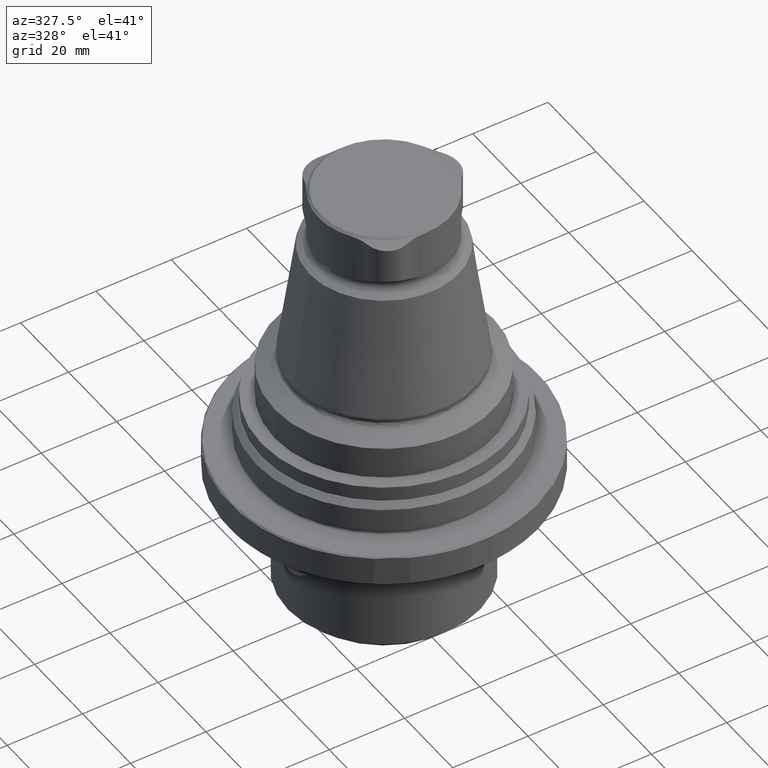
[diagram: clean part render]
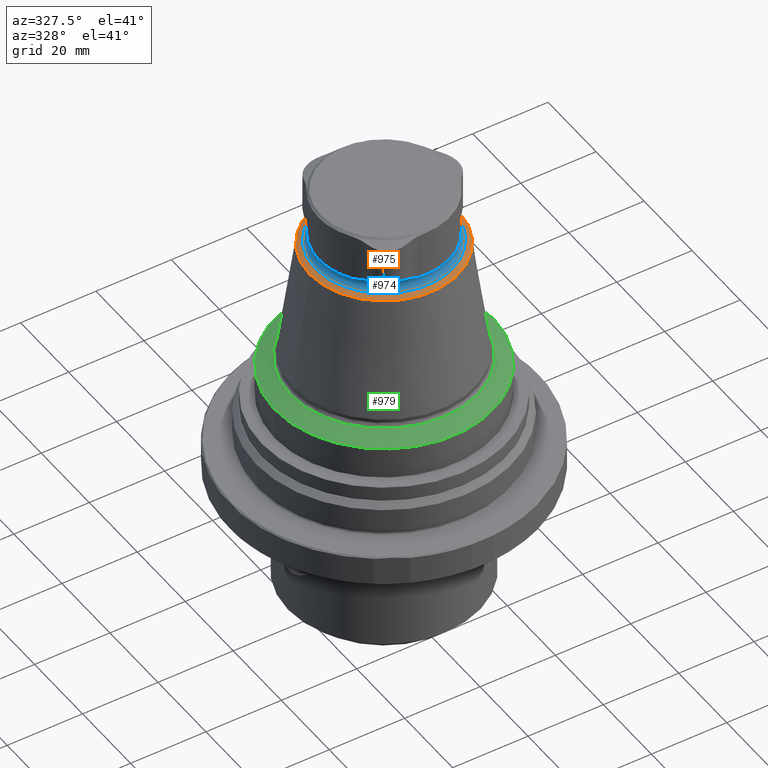
[diagram: same view with three faces highlighted in distinct colors, each labeled with its STEP entity id]
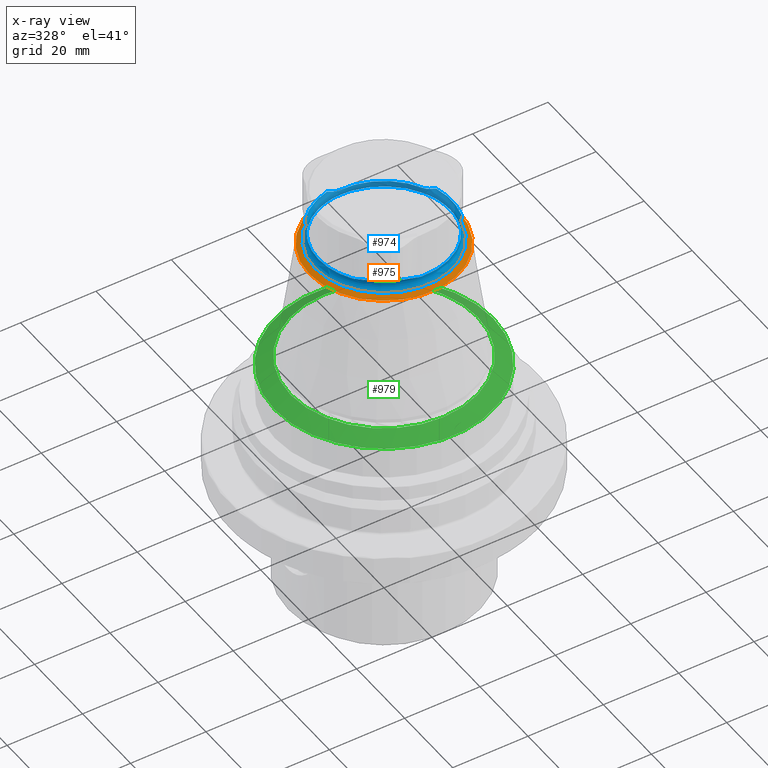
[diagram: x-ray of the same camera — body ghosted, the three highlighted faces saturated]
A machine part, auxiliary view with three faces highlighted in distinct colors.
The next image is the same camera in x-ray (body ghosted, the three faces saturated) — at least one of them is partly hidden behind the body in this view.
Their STEP definitions:

[orange] entity #975 — the highlighted conical surface has half-angle 60 deg.
#46=CONICAL_SURFACE('',#1099,19.820622068747,1.0471975511966);
#100=CIRCLE('',#1098,18.28);
#101=CIRCLE('',#1100,19.820622068747);
#398=ORIENTED_EDGE('',*,*,#553,.T.);
#399=ORIENTED_EDGE('',*,*,#554,.F.);
#553=EDGE_CURVE('',#653,#653,#100,.T.);
#554=EDGE_CURVE('',#654,#654,#101,.T.);
#653=VERTEX_POINT('',#1843);
#654=VERTEX_POINT('',#1846);
#774=EDGE_LOOP('',(#398));
#775=EDGE_LOOP('',(#399));
#869=FACE_BOUND('',#774,.T.);
#870=FACE_BOUND('',#775,.T.);
#975=ADVANCED_FACE('',(#869,#870),#46,.T.);
#1098=AXIS2_PLACEMENT_3D('',#1842,#1346,#1347);
#1099=AXIS2_PLACEMENT_3D('',#1844,#1348,#1349);
#1100=AXIS2_PLACEMENT_3D('',#1845,#1350,#1351);
#1346=DIRECTION('',(1.22461692971323E-16,-7.49836836562635E-33,-1.));
#1347=DIRECTION('',(-1.,6.12303176911189E-17,-1.22461692971323E-16));
#1348=DIRECTION('',(1.22461692971323E-16,-7.49836836562635E-33,-1.));
#1349=DIRECTION('',(-1.,6.12303176911189E-17,-1.22461692971323E-16));
#1350=DIRECTION('',(1.22461692971323E-16,-7.49836836562635E-33,-1.));
#1351=DIRECTION('',(-1.,6.12303176911189E-17,-1.22461692971323E-16));
#1842=CARTESIAN_POINT('',(1.86742218163645E-15,-1.14342853445042E-31,57.7519331303847));
#1843=CARTESIAN_POINT('',(-18.28,1.11929020739365E-15,57.7519331303847));
#1844=CARTESIAN_POINT('',(1.97634923270405E-15,-1.21012491387068E-31,56.8624545642742));
#1845=CARTESIAN_POINT('',(1.97634923270405E-15,-1.21012491387068E-31,56.8624545642742));
#1846=CARTESIAN_POINT('',(-19.820622068747,1.21362298610498E-15,56.8624545642742));

[blue] entity #974 — the highlighted toroidal blend (fillet) surface has major radius 19.28 mm and minor (blend) radius 2 mm.
#54=TOROIDAL_SURFACE('',#1097,19.28,2.);
#94=CIRCLE('',#1081,17.9944247806269);
#95=CIRCLE('',#1084,17.38);
#96=CIRCLE('',#1087,17.9944247806269);
#97=CIRCLE('',#1090,17.38);
#98=CIRCLE('',#1093,17.9944247806269);
#99=CIRCLE('',#1096,17.38);
#100=CIRCLE('',#1098,18.28);
#385=ORIENTED_EDGE('',*,*,#553,.F.);
#386=ORIENTED_EDGE('',*,*,#552,.T.);
#387=ORIENTED_EDGE('',*,*,#551,.T.);
#388=ORIENTED_EDGE('',*,*,#548,.T.);
#389=ORIENTED_EDGE('',*,*,#547,.T.);
#390=ORIENTED_EDGE('',*,*,#545,.T.);
#391=ORIENTED_EDGE('',*,*,#543,.T.);
#392=ORIENTED_EDGE('',*,*,#540,.T.);
#393=ORIENTED_EDGE('',*,*,#539,.T.);
#394=ORIENTED_EDGE('',*,*,#537,.T.);
#395=ORIENTED_EDGE('',*,*,#535,.T.);
#396=ORIENTED_EDGE('',*,*,#532,.T.);
#397=ORIENTED_EDGE('',*,*,#531,.T.);
#531=EDGE_CURVE('',#641,#642,#695,.T.);
#532=EDGE_CURVE('',#643,#641,#94,.T.);
#535=EDGE_CURVE('',#644,#643,#697,.T.);
#537=EDGE_CURVE('',#645,#644,#95,.T.);
#539=EDGE_CURVE('',#646,#645,#699,.T.);
#540=EDGE_CURVE('',#647,#646,#96,.T.);
#543=EDGE_CURVE('',#648,#647,#701,.T.);
#545=EDGE_CURVE('',#649,#648,#97,.T.);
#547=EDGE_CURVE('',#650,#649,#703,.T.);
#548=EDGE_CURVE('',#651,#650,#98,.T.);
#551=EDGE_CURVE('',#652,#651,#705,.T.);
#552=EDGE_CURVE('',#642,#652,#99,.T.);
#553=EDGE_CURVE('',#653,#653,#100,.T.);
#641=VERTEX_POINT('',#1756);
#642=VERTEX_POINT('',#1758);
#643=VERTEX_POINT('',#1766);
#644=VERTEX_POINT('',#1773);
#645=VERTEX_POINT('',#1781);
#646=VERTEX_POINT('',#1788);
#647=VERTEX_POINT('',#1796);
#648=VERTEX_POINT('',#1803);
#649=VERTEX_POINT('',#1811);
#650=VERTEX_POINT('',#1818);
#651=VERTEX_POINT('',#1826);
#652=VERTEX_POINT('',#1833);
#653=VERTEX_POINT('',#1843);
#695=B_SPLINE_CURVE_WITH_KNOTS('',3,(#1759,#1760,#1761,#1762,#1763),
 .UNSPECIFIED.,.F.,.F.,(4,1,4),(6.35686144103671E-7,0.0015978311918001,
0.00319502669745609),.UNSPECIFIED.);
#697=B_SPLINE_CURVE_WITH_KNOTS('',3,(#1774,#1775,#1776,#1777,#1778),
 .UNSPECIFIED.,.F.,.F.,(4,1,4),(1.97137655947821E-7,0.00159333802635267,
0.00318647891504939),.UNSPECIFIED.);
#699=B_SPLINE_CURVE_WITH_KNOTS('',3,(#1789,#1790,#1791,#1792,#1793),
 .UNSPECIFIED.,.F.,.F.,(4,1,4),(6.35686110278571E-7,0.00159783085864817,
0.00319502603118605),.UNSPECIFIED.);
#701=B_SPLINE_CURVE_WITH_KNOTS('',3,(#1804,#1805,#1806,#1807,#1808),
 .UNSPECIFIED.,.F.,.F.,(4,1,4),(2.20521440774518E-7,0.00159336113449156,
0.00318650174754235),.UNSPECIFIED.);
#703=B_SPLINE_CURVE_WITH_KNOTS('',3,(#1819,#1820,#1821,#1822,#1823),
 .UNSPECIFIED.,.F.,.F.,(4,1,4),(6.3568605650328E-7,0.00159783032874763,
0.00319502497143876),.UNSPECIFIED.);
#705=B_SPLINE_CURVE_WITH_KNOTS('',3,(#1834,#1835,#1836,#1837,#1838),
 .UNSPECIFIED.,.F.,.F.,(4,1,4),(2.35223058471433E-7,0.00159337566279852,
0.00318651610253857),.UNSPECIFIED.);
#772=EDGE_LOOP('',(#385));
#773=EDGE_LOOP('',(#386,#387,#388,#389,#390,#391,#392,#393,#394,#395,#396,
#397));
#867=FACE_BOUND('',#772,.T.);
#868=FACE_BOUND('',#773,.T.);
#974=ADVANCED_FACE('',(#867,#868),#54,.F.);
#1081=AXIS2_PLACEMENT_3D('',#1765,#1307,#1308);
#1084=AXIS2_PLACEMENT_3D('',#1782,#1315,#1316);
#1087=AXIS2_PLACEMENT_3D('',#1795,#1321,#1322);
#1090=AXIS2_PLACEMENT_3D('',#1812,#1329,#1330);
#1093=AXIS2_PLACEMENT_3D('',#1825,#1335,#1336);
#1096=AXIS2_PLACEMENT_3D('',#1840,#1342,#1343);
#1097=AXIS2_PLACEMENT_3D('',#1841,#1344,#1345);
#1098=AXIS2_PLACEMENT_3D('',#1842,#1346,#1347);
#1307=DIRECTION('',(1.22461692971323E-16,-7.49836836562635E-33,-1.));
#1308=DIRECTION('',(-1.,6.12303176911189E-17,-1.22461692971323E-16));
#1315=DIRECTION('',(1.22461692971323E-16,-7.49836836562635E-33,-1.));
#1316=DIRECTION('',(-1.,6.12303176911189E-17,-1.22461692971323E-16));
#1321=DIRECTION('',(1.22461692971323E-16,-7.49836836562635E-33,-1.));
#1322=DIRECTION('',(-1.,6.12303176911189E-17,-1.22461692971323E-16));
#1329=DIRECTION('',(1.22461692971323E-16,-7.49836836562635E-33,-1.));
#1330=DIRECTION('',(-1.,6.12303176911189E-17,-1.22461692971323E-16));
#1335=DIRECTION('',(1.22461692971323E-16,-7.49836836562635E-33,-1.));
#1336=DIRECTION('',(-1.,6.12303176911189E-17,-1.22461692971323E-16));
#1342=DIRECTION('',(1.22461692971323E-16,-7.49836836562635E-33,-1.));
#1343=DIRECTION('',(-1.,6.12303176911189E-17,-1.22461692971323E-16));
#1344=DIRECTION('',(1.22461692971323E-16,-7.49836836562635E-33,-1.));
#1345=DIRECTION('',(-1.,6.12303176911189E-17,-1.22461692971323E-16));
#1346=DIRECTION('',(1.22461692971323E-16,-7.49836836562635E-33,-1.));
#1347=DIRECTION('',(-1.,6.12303176911189E-17,-1.22461692971323E-16));
#1756=CARTESIAN_POINT('',(-13.1844579384725,-12.2461990860139,61.0160728241915));
#1758=CARTESIAN_POINT('',(-14.5433864753958,-9.51600282825072,60.1084837377934));
#1759=CARTESIAN_POINT('',(-13.1844579384718,-12.2461990860133,61.0160728241922));
#1760=CARTESIAN_POINT('',(-13.3557624744756,-11.7684289393792,60.8485594541288));
#1761=CARTESIAN_POINT('',(-13.7430631802596,-10.8589171321317,60.4659393934881));
#1762=CARTESIAN_POINT('',(-14.2485410599591,-9.96661753534753,60.1084837377905));
#1763=CARTESIAN_POINT('',(-14.5433864753951,-9.51600282825074,60.1084837377904));
#1765=CARTESIAN_POINT('',(1.46769010863797E-15,-8.98671316240156E-32,61.0160728241915));
#1766=CARTESIAN_POINT('',(-4.0132905390536,-17.5411750528516,61.0160728241915));
#1773=CARTESIAN_POINT('',(-0.969406954051809,-17.3529435588731,60.1084837377934));
#1774=CARTESIAN_POINT('',(-0.96940695405181,-17.3529435588731,60.1084837377934));
#1775=CARTESIAN_POINT('',(-1.50816065140855,-17.3228465566575,60.1084837377934));
#1776=CARTESIAN_POINT('',(-2.5276528809224,-17.3310864051679,60.4643411911177));
#1777=CARTESIAN_POINT('',(-3.51330235117727,-17.4505398563382,60.8483666425664));
#1778=CARTESIAN_POINT('',(-4.0132905390535,-17.541175052851,61.016072824192));
#1781=CARTESIAN_POINT('',(15.5127934294476,-7.83694073062241,60.1084837377934));
#1782=CARTESIAN_POINT('',(-7.64773027486394E-17,4.68272954345907E-33,60.1084837377934));
#1788=CARTESIAN_POINT('',(17.1977484775261,-5.29497596683764,61.0160728241915));
#1789=CARTESIAN_POINT('',(17.1977484775253,-5.29497596683733,61.0160728241922));
#1790=CARTESIAN_POINT('',(16.8696397123536,-5.6822150599481,60.8485594801569));
#1791=CARTESIAN_POINT('',(16.2756298563554,-6.47238305001316,60.4659395692859));
#1792=CARTESIAN_POINT('',(15.7556146861175,-7.35628939938424,60.1084837377908));
#1793=CARTESIAN_POINT('',(15.5127934294473,-7.83694073062188,60.1084837377907));
#1795=CARTESIAN_POINT('',(1.46769010863797E-15,-8.98671316240156E-32,61.0160728241915));
#1796=CARTESIAN_POINT('',(17.1977484775261,5.29497596683763,61.0160728241915));
#1803=CARTESIAN_POINT('',(15.5127934294476,7.8369407306223,60.1084837377934));
#1804=CARTESIAN_POINT('',(15.5127934294476,7.8369407306223,60.1084837377934));
#1805=CARTESIAN_POINT('',(15.7561051581389,7.35531853697712,60.1084837377934));
#1806=CARTESIAN_POINT('',(16.2729875744631,6.47653147093607,60.464341093761));
#1807=CARTESIAN_POINT('',(16.8692619580383,5.68266089149592,60.8483666206682));
#1808=CARTESIAN_POINT('',(17.1977484775256,5.29497596683744,61.016072824192));
#1811=CARTESIAN_POINT('',(-0.969406954051804,17.3529435588731,60.1084837377934));
#1812=CARTESIAN_POINT('',(-7.64773027486394E-17,4.68272954345907E-33,60.1084837377934));
#1818=CARTESIAN_POINT('',(-4.01329053905358,17.5411750528516,61.0160728241915));
#1819=CARTESIAN_POINT('',(-4.01329053905341,17.5411750528507,61.0160728241922));
#1820=CARTESIAN_POINT('',(-3.51387738791884,17.4506440959366,60.8485595215557));
#1821=CARTESIAN_POINT('',(-2.53256722910757,17.3313005024,60.4659398488993));
#1822=CARTESIAN_POINT('',(-1.50707448211518,17.3229072345509,60.1084837377914));
#1823=CARTESIAN_POINT('',(-0.969406954052059,17.3529435588727,60.1084837377913));
#1825=CARTESIAN_POINT('',(1.46769010863797E-15,-8.98671316240156E-32,61.0160728241915));
#1826=CARTESIAN_POINT('',(-13.1844579384725,12.2461990860139,61.0160728241915));
#1833=CARTESIAN_POINT('',(-14.5433864753958,9.51600282825071,60.1084837377934));
#1834=CARTESIAN_POINT('',(-14.5433864753958,9.51600282825071,60.1084837377934));
#1835=CARTESIAN_POINT('',(-14.2479455533474,9.96752765306905,60.1084837377934));
#1836=CARTESIAN_POINT('',(-13.7453345115463,10.8545549561262,60.4643410325569));
#1837=CARTESIAN_POINT('',(-13.3559596862253,11.7678789137431,60.8483666069014));
#1838=CARTESIAN_POINT('',(-13.1844579384721,12.2461990860136,61.016072824192));
#1840=CARTESIAN_POINT('',(-7.64773027486394E-17,4.68272954345907E-33,60.1084837377934));
#1841=CARTESIAN_POINT('',(0.,0.,59.4839839379536));
#1842=CARTESIAN_POINT('',(1.86742218163645E-15,-1.14342853445042E-31,57.7519331303847));
#1843=CARTESIAN_POINT('',(-18.28,1.11929020739365E-15,57.7519331303847));

[green] entity #979 — the highlighted conical surface has half-angle 60 deg.
#49=CONICAL_SURFACE('',#1107,29.,1.0471975511966);
#104=CIRCLE('',#1106,24.8);
#105=CIRCLE('',#1108,29.);
#406=ORIENTED_EDGE('',*,*,#557,.T.);
#407=ORIENTED_EDGE('',*,*,#558,.F.);
#557=EDGE_CURVE('',#657,#657,#104,.T.);
#558=EDGE_CURVE('',#658,#658,#105,.T.);
#657=VERTEX_POINT('',#1855);
#658=VERTEX_POINT('',#1858);
#782=EDGE_LOOP('',(#406));
#783=EDGE_LOOP('',(#407));
#877=FACE_BOUND('',#782,.T.);
#878=FACE_BOUND('',#783,.T.);
#979=ADVANCED_FACE('',(#877,#878),#49,.T.);
#1106=AXIS2_PLACEMENT_3D('',#1854,#1362,#1363);
#1107=AXIS2_PLACEMENT_3D('',#1856,#1364,#1365);
#1108=AXIS2_PLACEMENT_3D('',#1857,#1366,#1367);
#1362=DIRECTION('',(1.22461692971323E-16,-7.49836836562635E-33,-1.));
#1363=DIRECTION('',(-1.,6.12303176911189E-17,-1.22461692971323E-16));
#1364=DIRECTION('',(1.22461692971323E-16,-7.49836836562635E-33,-1.));
#1365=DIRECTION('',(-1.,6.12303176911189E-17,-1.22461692971323E-16));
#1366=DIRECTION('',(1.22461692971323E-16,-7.49836836562635E-33,-1.));
#1367=DIRECTION('',(-1.,6.12303176911189E-17,-1.22461692971323E-16));
#1854=CARTESIAN_POINT('',(6.07951171463002E-15,-3.72250433693675E-31,23.3567730538379));
#1855=CARTESIAN_POINT('',(-24.8,1.51851187873975E-15,23.3567730538379));
#1856=CARTESIAN_POINT('',(6.37646553852014E-15,-3.9043301067006E-31,20.9319019232415));
#1857=CARTESIAN_POINT('',(6.37646553852014E-15,-3.9043301067006E-31,20.9319019232415));
#1858=CARTESIAN_POINT('',(-29.,1.77567921304245E-15,20.9319019232415));